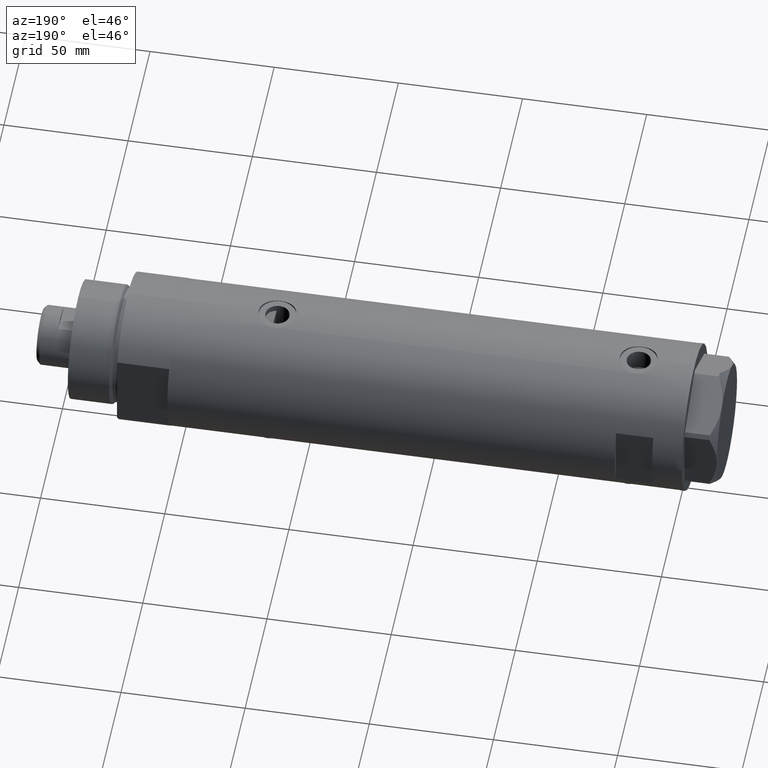
[diagram: clean part render]
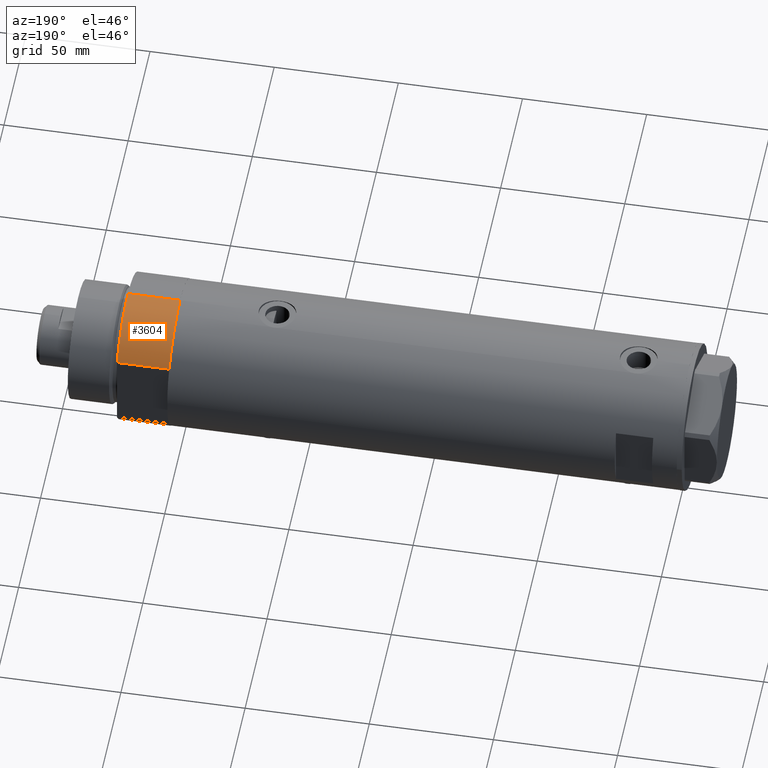
[diagram: same view with one face highlighted and labeled with its STEP entity id]
A machine part, auxiliary view. The second image highlights one B-rep face of the part: STEP entity #3604.
In plain terms, the highlighted cylindrical surface (partial cylindrical patch) has radius 29.5 mm, axis along (-1, -0, 0).
Its self-contained STEP definition (entity closure, byte-faithful):
#59 = CARTESIAN_POINT ( 'NONE',  ( 0.000000000000000000, 0.000000000000000000, 0.000000000000000000 ) ) ;
#72 = CARTESIAN_POINT ( 'NONE',  ( 0.000000000000000000, 0.000000000000000000, 21.00000000000000000 ) ) ;
#152 = EDGE_CURVE ( 'NONE', #2660, #1260, #2229, .T. ) ;
#432 = VECTOR ( 'NONE', #3637, 1000.000000000000000 ) ;
#463 = ORIENTED_EDGE ( 'NONE', *, *, #4022, .F. ) ;
#1260 = VERTEX_POINT ( 'NONE', #2769 ) ;
#1310 = DIRECTION ( 'NONE',  ( -0.000000000000000000, -0.000000000000000000, -1.000000000000000000 ) ) ;
#1475 = EDGE_CURVE ( 'NONE', #2452, #2660, #1648, .T. ) ;
#1648 = CIRCLE ( 'NONE', #4180, 29.50000000000000355 ) ;
#1873 = AXIS2_PLACEMENT_3D ( 'NONE', #3296, #1310, #2705 ) ;
#1952 = DIRECTION ( 'NONE',  ( -0.000000000000000000, -0.000000000000000000, -1.000000000000000000 ) ) ;
#2229 = LINE ( 'NONE', #2585, #4457 ) ;
#2303 = AXIS2_PLACEMENT_3D ( 'NONE', #59, #3038, #2679 ) ;
#2321 = CARTESIAN_POINT ( 'NONE',  ( -15.66045976336583045, 24.99999999999999645, 21.00000000000000355 ) ) ;
#2331 = CYLINDRICAL_SURFACE ( 'NONE', #1873, 29.50000000000000355 ) ;
#2452 = VERTEX_POINT ( 'NONE', #2321 ) ;
#2475 = DIRECTION ( 'NONE',  ( 0.000000000000000000, 0.000000000000000000, 1.000000000000000000 ) ) ;
#2572 = ORIENTED_EDGE ( 'NONE', *, *, #3271, .T. ) ;
#2585 = CARTESIAN_POINT ( 'NONE',  ( -29.50000000000000355, 0.000000000000000000, 21.00000000000000000 ) ) ;
#2660 = VERTEX_POINT ( 'NONE', #3615 ) ;
#2679 = DIRECTION ( 'NONE',  ( 1.000000000000000000, 0.000000000000000000, 0.000000000000000000 ) ) ;
#2705 = DIRECTION ( 'NONE',  ( -1.000000000000000000, 0.000000000000000000, 0.000000000000000000 ) ) ;
#2735 = VERTEX_POINT ( 'NONE', #3481 ) ;
#2756 = DIRECTION ( 'NONE',  ( 1.000000000000000000, 0.000000000000000000, 0.000000000000000000 ) ) ;
#2769 = CARTESIAN_POINT ( 'NONE',  ( -29.50000000000000355, 0.000000000000000000, 0.000000000000000000 ) ) ;
#2849 = ORIENTED_EDGE ( 'NONE', *, *, #152, .F. ) ;
#3021 = LINE ( 'NONE', #4367, #432 ) ;
#3038 = DIRECTION ( 'NONE',  ( 0.000000000000000000, 0.000000000000000000, 1.000000000000000000 ) ) ;
#3271 = EDGE_CURVE ( 'NONE', #2735, #1260, #3963, .T. ) ;
#3296 = CARTESIAN_POINT ( 'NONE',  ( 0.000000000000000000, 0.000000000000000000, 21.00000000000000000 ) ) ;
#3461 = EDGE_LOOP ( 'NONE', ( #2849, #3961, #463, #2572 ) ) ;
#3481 = CARTESIAN_POINT ( 'NONE',  ( -15.66045976336583401, 25.00000000000000000, 0.000000000000000000 ) ) ;
#3604 = ADVANCED_FACE ( 'NONE', ( #3729 ), #2331, .T. ) ;
#3615 = CARTESIAN_POINT ( 'NONE',  ( -29.50000000000000355, 0.000000000000000000, 21.00000000000000000 ) ) ;
#3637 = DIRECTION ( 'NONE',  ( -0.000000000000000000, -0.000000000000000000, 1.000000000000000000 ) ) ;
#3729 = FACE_OUTER_BOUND ( 'NONE', #3461, .T. ) ;
#3961 = ORIENTED_EDGE ( 'NONE', *, *, #1475, .F. ) ;
#3963 = CIRCLE ( 'NONE', #2303, 29.50000000000000355 ) ;
#4022 = EDGE_CURVE ( 'NONE', #2735, #2452, #3021, .T. ) ;
#4180 = AXIS2_PLACEMENT_3D ( 'NONE', #72, #2475, #2756 ) ;
#4367 = CARTESIAN_POINT ( 'NONE',  ( -15.66045976336583401, 25.00000000000000000, 0.000000000000000000 ) ) ;
#4457 = VECTOR ( 'NONE', #1952, 1000.000000000000000 ) ;